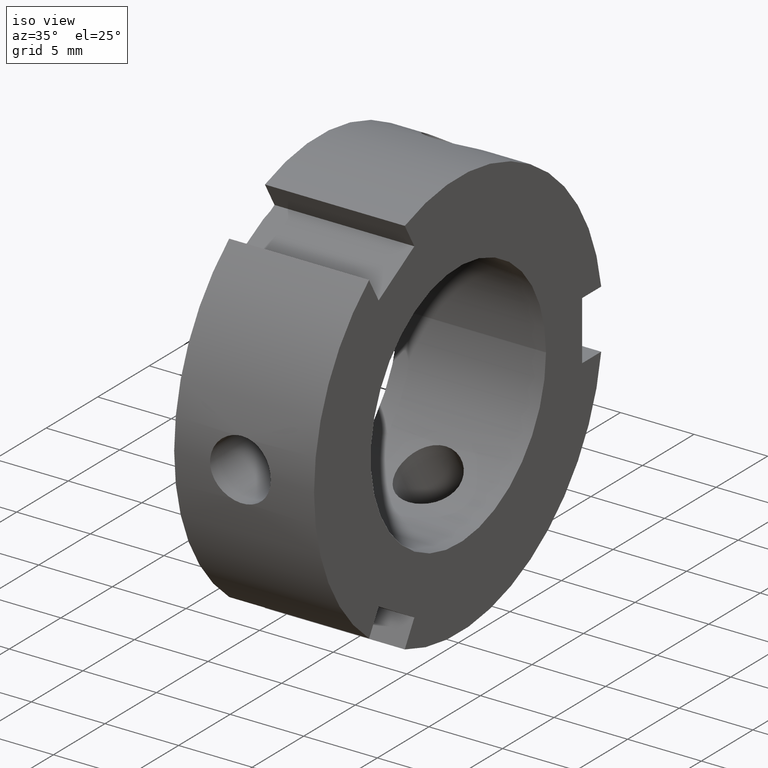
[diagram: clean part render]
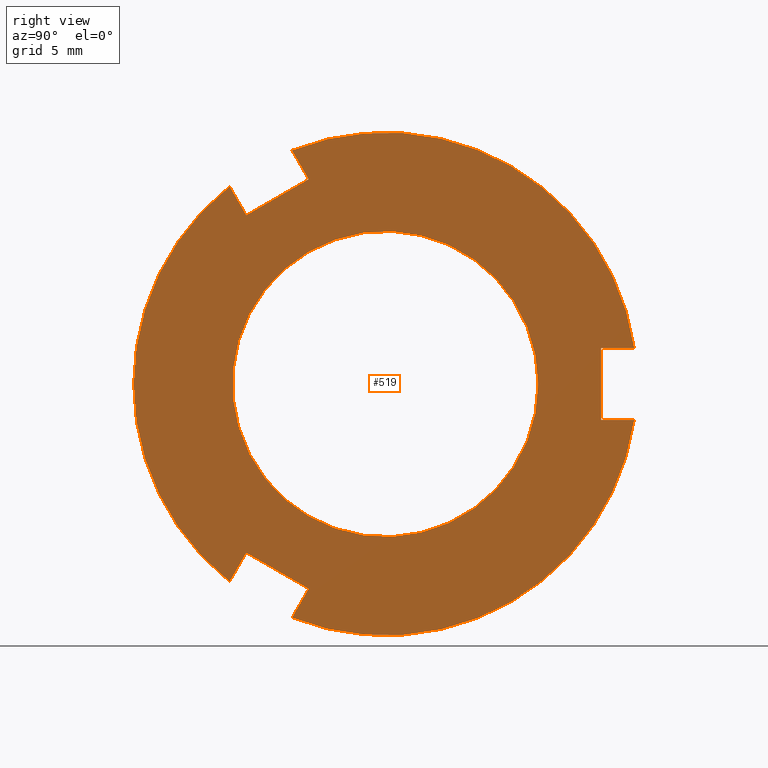
[diagram: tour spotlight — one face highlighted and labeled with its STEP entity id]
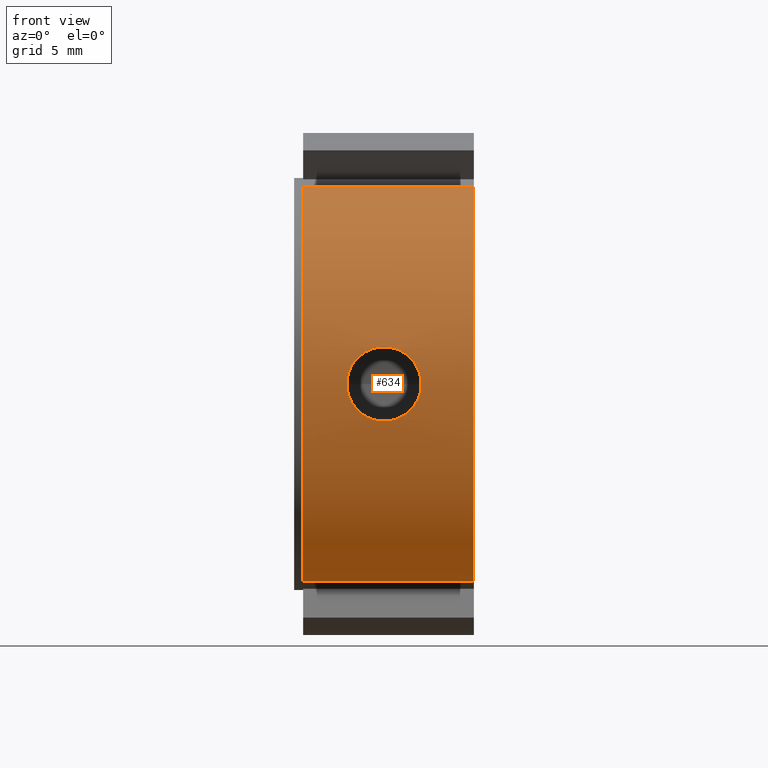
[diagram: tour spotlight — one face highlighted and labeled with its STEP entity id]
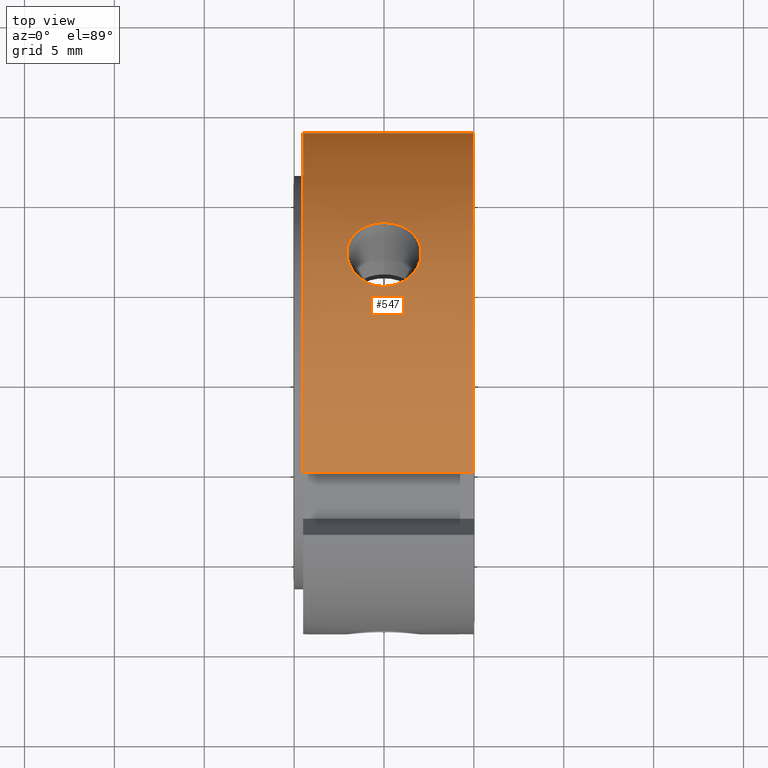
[diagram: tour spotlight — one face highlighted and labeled with its STEP entity id]
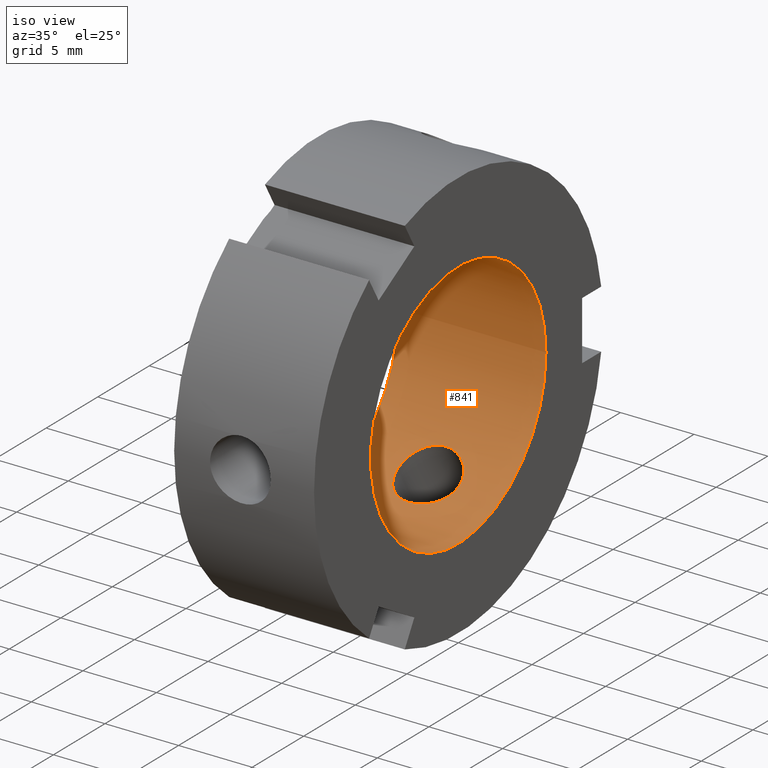
[diagram: tour spotlight — one face highlighted and labeled with its STEP entity id]
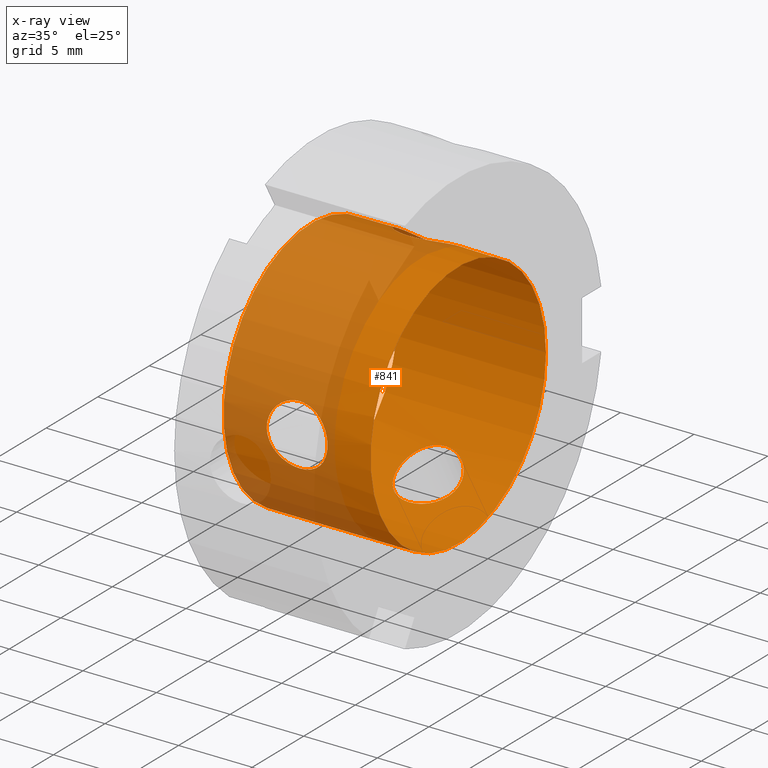
[diagram: x-ray of the same camera — body ghosted, this tour face saturated]
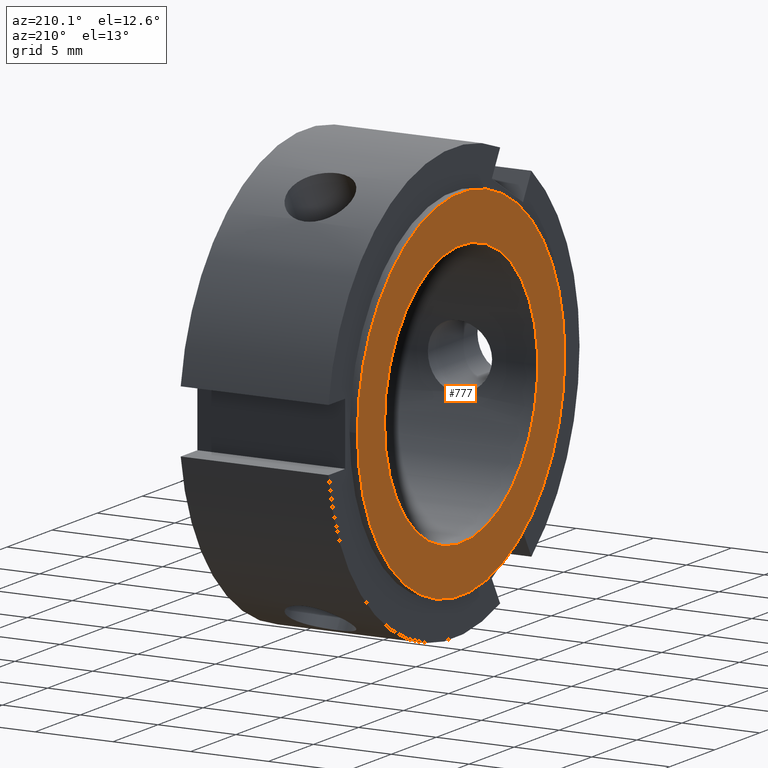
[diagram: tour spotlight — one face highlighted and labeled with its STEP entity id]
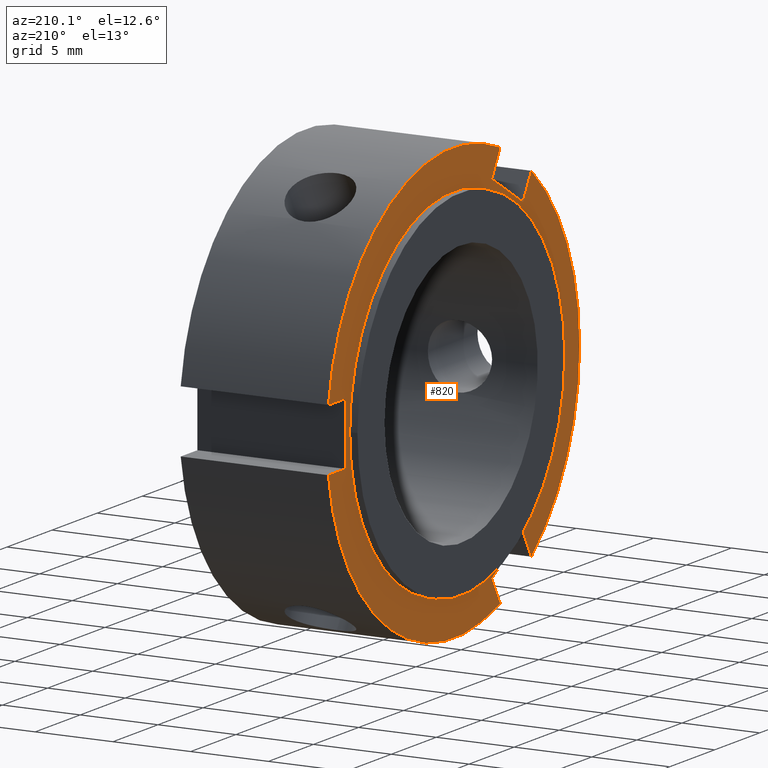
[diagram: tour spotlight — one face highlighted and labeled with its STEP entity id]
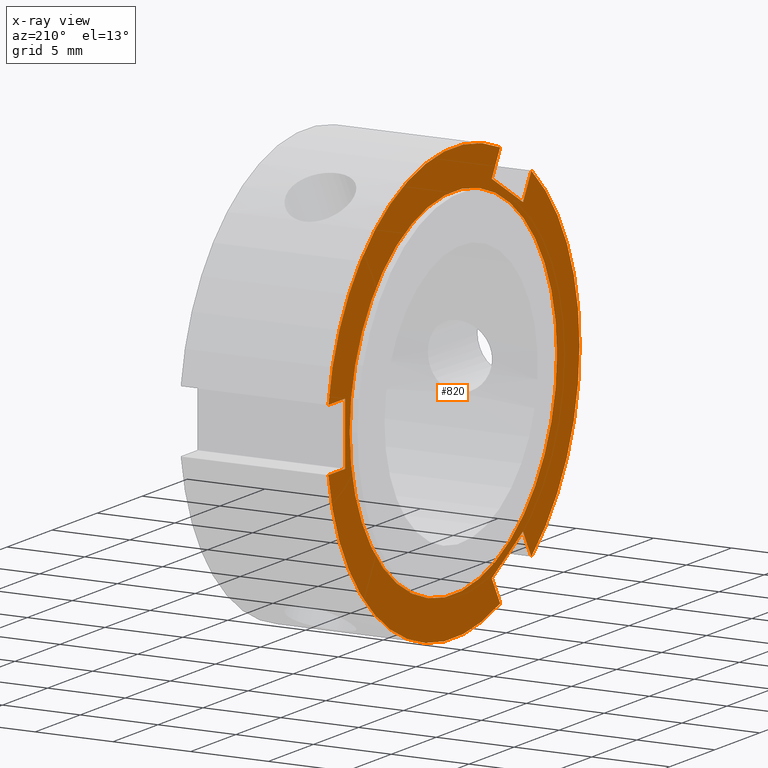
[diagram: x-ray of the same camera — body ghosted, this tour face saturated]
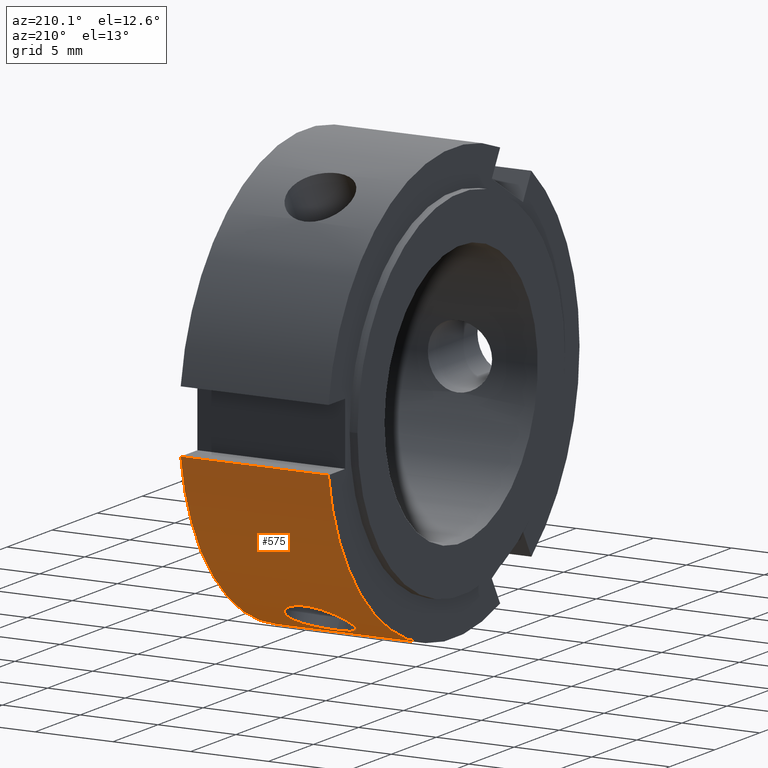
[diagram: tour spotlight — one face highlighted and labeled with its STEP entity id]
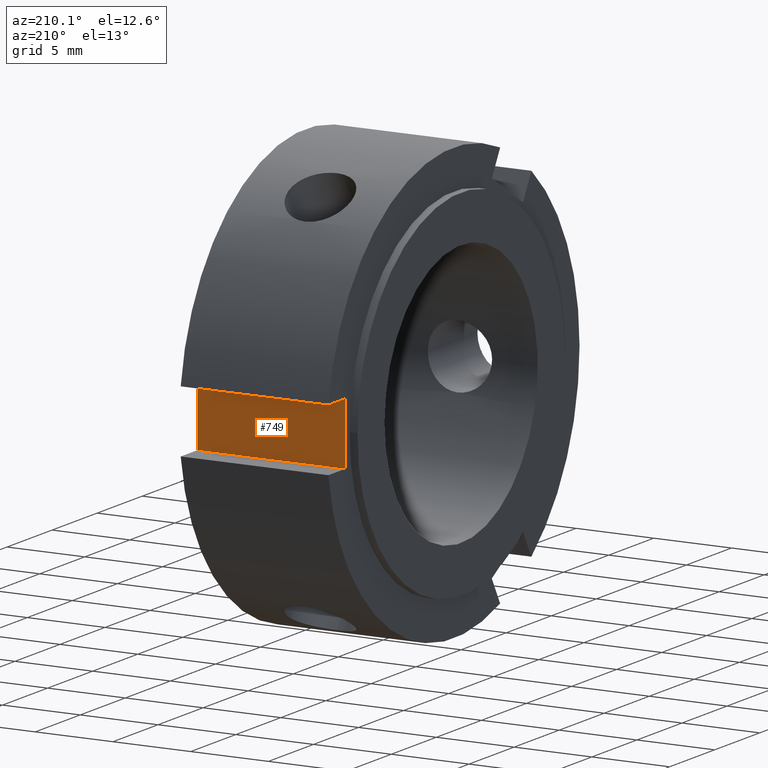
[diagram: tour spotlight — one face highlighted and labeled with its STEP entity id]
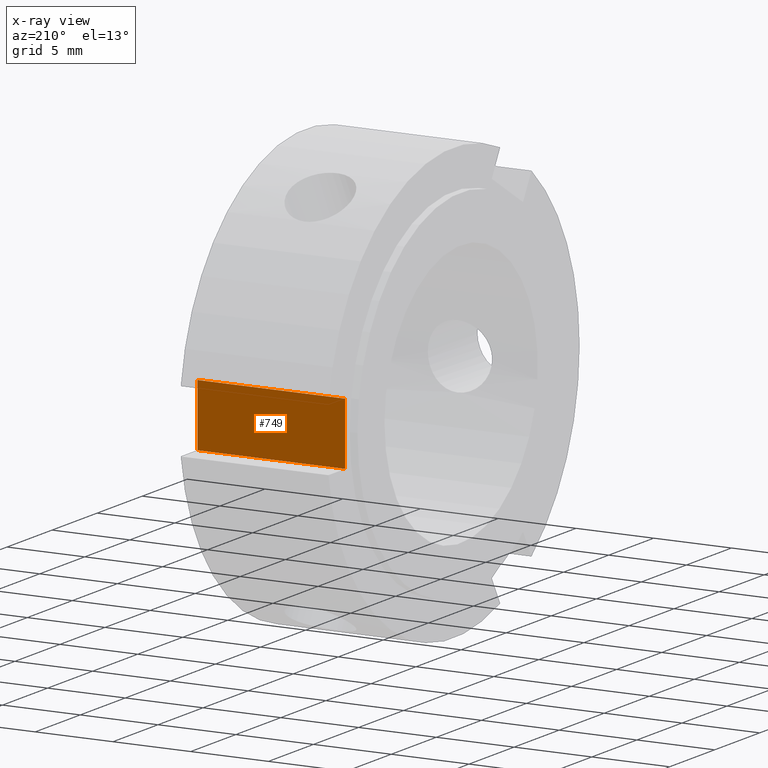
[diagram: x-ray of the same camera — body ghosted, this tour face saturated]
A machine part: a face-by-face anatomy tour. The part has 20 B-rep faces; the first image is the clean iso view, then the 8 largest visible faces are spotlighted one at a time (largest first), each with its STEP entity span.

Face 1 — right view, entity #519. In plain terms, the highlighted planar face has unit normal (1, 0, 0).
Definition (entity closure, byte-faithful):
#83=CARTESIAN_POINT('',(9.999999999999996,-7.732050807568882,-9.392304845413261));
#84=VERTEX_POINT('',#83);
#91=CARTESIAN_POINT('',(9.999999999999996,-8.660254037844391,-10.999999999999995));
#92=VERTEX_POINT('',#91);
#93=CARTESIAN_POINT('',(9.999999999999996,-8.660254037844393,-10.999999999999995));
#94=DIRECTION('',(0.0,0.500000000000000,0.866025403784439));
#95=VECTOR('',#94,1.856406460551016);
#96=LINE('',#93,#95);
#97=EDGE_CURVE('',#92,#84,#96,.T.);
#123=CARTESIAN_POINT('',(9.999999999999996,-5.196152422706638,-12.999999999999996));
#124=VERTEX_POINT('',#123);
#131=CARTESIAN_POINT('',(9.999999999999996,-4.267949192431128,-11.392304845413260));
#132=VERTEX_POINT('',#131);
#133=CARTESIAN_POINT('',(9.999999999999996,-4.267949192431130,-11.392304845413264));
#134=DIRECTION('',(0.0,-0.500000000000001,-0.866025403784438));
#135=VECTOR('',#134,1.856406460551017);
#136=LINE('',#133,#135);
#137=EDGE_CURVE('',#132,#124,#136,.T.);
#160=CARTESIAN_POINT('',(9.999999999999996,-7.732050807568885,-9.392304845413261));
#161=DIRECTION('',(0.0,0.866025403784438,-0.500000000000001));
#162=VECTOR('',#161,4.000000000000003);
#163=LINE('',#160,#162);
#164=EDGE_CURVE('',#84,#132,#163,.T.);
#273=CARTESIAN_POINT('',(9.999999999999996,-4.267949192431120,11.392304845413264));
#274=VERTEX_POINT('',#273);
#281=CARTESIAN_POINT('',(9.999999999999996,-5.196152422706629,12.999999999999998));
#282=VERTEX_POINT('',#281);
#283=CARTESIAN_POINT('',(9.999999999999996,-5.196152422706629,13.0));
#284=DIRECTION('',(0.0,0.500000000000000,-0.866025403784439));
#285=VECTOR('',#284,1.856406460551018);
#286=LINE('',#283,#285);
#287=EDGE_CURVE('',#282,#274,#286,.T.);
#313=CARTESIAN_POINT('',(9.999999999999996,-8.660254037844384,11.0));
#314=VERTEX_POINT('',#313);
#321=CARTESIAN_POINT('',(9.999999999999996,-7.732050807568875,9.392304845413266));
#322=VERTEX_POINT('',#321);
#323=CARTESIAN_POINT('',(9.999999999999996,-7.732050807568876,9.392304845413266));
#324=DIRECTION('',(0.0,-0.500000000000000,0.866025403784439));
#325=VECTOR('',#324,1.856406460551016);
#326=LINE('',#323,#325);
#327=EDGE_CURVE('',#322,#314,#326,.T.);
#350=CARTESIAN_POINT('',(9.999999999999996,-4.267949192431121,11.392304845413264));
#351=DIRECTION('',(0.0,-0.866025403784439,-0.500000000000000));
#352=VECTOR('',#351,4.000000000000001);
#353=LINE('',#350,#352);
#354=EDGE_CURVE('',#274,#322,#353,.T.);
#448=CARTESIAN_POINT('',(9.999999999999996,11.250000000000000,0.0));
#449=DIRECTION('',(1.0,0.0,0.0));
#450=DIRECTION('',(0.0,0.0,-1.0));
#451=AXIS2_PLACEMENT_3D('',#448,#449,#450);
#452=PLANE('',#451);
#453=ORIENTED_EDGE('',*,*,#97,.T.);
#454=ORIENTED_EDGE('',*,*,#164,.T.);
#455=ORIENTED_EDGE('',*,*,#137,.T.);
#456=CARTESIAN_POINT('',(9.999999999999996,13.856406460551016,-2.000000000000000));
#457=VERTEX_POINT('',#456);
#458=CARTESIAN_POINT('',(9.999999999999996,0.0,0.0));
#459=DIRECTION('',(1.0,0.0,0.0));
#460=DIRECTION('',(0.0,1.0,0.0));
#461=AXIS2_PLACEMENT_3D('',#458,#459,#460);
#462=CIRCLE('',#461,14.0);
#463=EDGE_CURVE('',#124,#457,#462,.T.);
#464=ORIENTED_EDGE('',*,*,#463,.T.);
#465=CARTESIAN_POINT('',(9.999999999999996,12.0,-2.000000000000000));
#466=VERTEX_POINT('',#465);
#467=CARTESIAN_POINT('',(9.999999999999996,13.856406460551016,-2.000000000000000));
#468=DIRECTION('',(0.0,-1.0,0.0));
#469=VECTOR('',#468,1.856406460551018);
#470=LINE('',#467,#469);
#471=EDGE_CURVE('',#457,#466,#470,.T.);
#472=ORIENTED_EDGE('',*,*,#471,.T.);
#473=CARTESIAN_POINT('',(9.999999999999996,12.0,2.000000000000000));
#474=VERTEX_POINT('',#473);
#475=CARTESIAN_POINT('',(9.999999999999996,12.000000000000002,-2.0));
#476=DIRECTION('',(0.0,0.0,1.0));
#477=VECTOR('',#476,4.0);
#478=LINE('',#475,#477);
#479=EDGE_CURVE('',#466,#474,#478,.T.);
#480=ORIENTED_EDGE('',*,*,#479,.T.);
#481=CARTESIAN_POINT('',(9.999999999999996,13.856406460551016,2.000000000000000));
#482=VERTEX_POINT('',#481);
#483=CARTESIAN_POINT('',(9.999999999999996,12.0,2.000000000000000));
#484=DIRECTION('',(0.0,1.0,0.0));
#485=VECTOR('',#484,1.856406460551018);
#486=LINE('',#483,#485);
#487=EDGE_CURVE('',#474,#482,#486,.T.);
#488=ORIENTED_EDGE('',*,*,#487,.T.);
#489=CARTESIAN_POINT('',(9.999999999999996,0.0,0.0));
#490=DIRECTION('',(1.0,0.0,0.0));
#491=DIRECTION('',(0.0,1.0,0.0));
#492=AXIS2_PLACEMENT_3D('',#489,#490,#491);
#493=CIRCLE('',#492,14.0);
#494=EDGE_CURVE('',#482,#282,#493,.T.);
#495=ORIENTED_EDGE('',*,*,#494,.T.);
#496=ORIENTED_EDGE('',*,*,#287,.T.);
#497=ORIENTED_EDGE('',*,*,#354,.T.);
#498=ORIENTED_EDGE('',*,*,#327,.T.);
#499=CARTESIAN_POINT('',(9.999999999999996,0.0,0.0));
#500=DIRECTION('',(1.0,0.0,0.0));
#501=DIRECTION('',(0.0,1.0,0.0));
#502=AXIS2_PLACEMENT_3D('',#499,#500,#501);
#503=CIRCLE('',#502,14.0);
#504=EDGE_CURVE('',#314,#92,#503,.T.);
#505=ORIENTED_EDGE('',*,*,#504,.T.);
#506=EDGE_LOOP('',(#453,#454,#455,#464,#472,#480,#488,#495,#496,#497,#498,#505));
#507=FACE_OUTER_BOUND('',#506,.T.);
#508=CARTESIAN_POINT('',(9.999999999999996,8.500000000000000,0.0));
#509=VERTEX_POINT('',#508);
#510=CARTESIAN_POINT('',(9.999999999999996,0.0,0.0));
#511=DIRECTION('',(1.0,0.0,0.0));
#512=DIRECTION('',(0.0,1.0,0.0));
#513=AXIS2_PLACEMENT_3D('',#510,#511,#512);
#514=CIRCLE('',#513,8.500000000000000);
#515=EDGE_CURVE('',#509,#509,#514,.T.);
#516=ORIENTED_EDGE('',*,*,#515,.F.);
#517=EDGE_LOOP('',(#516));
#518=FACE_BOUND('',#517,.T.);
#519=ADVANCED_FACE('',(#507,#518),#452,.T.);

Face 2 — front view, entity #634. In plain terms, the highlighted cylindrical surface (partial cylindrical patch) has radius 14 mm, axis along (1, 0, 0).
Definition (entity closure, byte-faithful):
#75=CARTESIAN_POINT('',(0.499999999999998,-8.660254037844391,-10.999999999999995));
#76=VERTEX_POINT('',#75);
#91=CARTESIAN_POINT('',(9.999999999999996,-8.660254037844391,-10.999999999999995));
#92=VERTEX_POINT('',#91);
#99=CARTESIAN_POINT('',(0.499999999999998,-8.660254037844391,-10.999999999999993));
#100=DIRECTION('',(1.0,0.0,0.0));
#101=VECTOR('',#100,9.499999999999996);
#102=LINE('',#99,#101);
#103=EDGE_CURVE('',#76,#92,#102,.T.);
#303=CARTESIAN_POINT('',(0.499999999999998,-8.660254037844384,11.0));
#304=VERTEX_POINT('',#303);
#313=CARTESIAN_POINT('',(9.999999999999996,-8.660254037844384,11.0));
#314=VERTEX_POINT('',#313);
#315=CARTESIAN_POINT('',(9.999999999999995,-8.660254037844384,11.0));
#316=DIRECTION('',(-1.0,0.0,0.0));
#317=VECTOR('',#316,9.499999999999996);
#318=LINE('',#315,#317);
#319=EDGE_CURVE('',#314,#304,#318,.T.);
#499=CARTESIAN_POINT('',(9.999999999999996,0.0,0.0));
#500=DIRECTION('',(1.0,0.0,0.0));
#501=DIRECTION('',(0.0,1.0,0.0));
#502=AXIS2_PLACEMENT_3D('',#499,#500,#501);
#503=CIRCLE('',#502,14.0);
#504=EDGE_CURVE('',#314,#92,#503,.T.);
#576=CARTESIAN_POINT('',(5.249999999999996,0.0,0.0));
#577=DIRECTION('',(1.0,0.0,0.0));
#578=DIRECTION('',(0.0,1.0,0.0));
#579=AXIS2_PLACEMENT_3D('',#576,#577,#578);
#580=CYLINDRICAL_SURFACE('',#579,14.0);
#581=ORIENTED_EDGE('',*,*,#103,.T.);
#582=ORIENTED_EDGE('',*,*,#504,.F.);
#583=ORIENTED_EDGE('',*,*,#319,.T.);
#584=CARTESIAN_POINT('',(0.499999999999998,0.0,0.0));
#585=DIRECTION('',(1.0,0.0,0.0));
#586=DIRECTION('',(0.0,1.0,0.0));
#587=AXIS2_PLACEMENT_3D('',#584,#585,#586);
#588=CIRCLE('',#587,14.0);
#589=EDGE_CURVE('',#304,#76,#588,.T.);
#590=ORIENTED_EDGE('',*,*,#589,.T.);
#591=EDGE_LOOP('',(#581,#582,#583,#590));
#592=FACE_OUTER_BOUND('',#591,.T.);
#593=CARTESIAN_POINT('',(4.999999999999996,-13.846570369589719,2.067000000000000));
#594=VERTEX_POINT('',#593);
#595=CARTESIAN_POINT('',(4.999999999999996,-13.846570369589719,2.067000000000000));
#596=CARTESIAN_POINT('',(5.259947840968655,-13.846570369589719,2.067000000000000));
#597=CARTESIAN_POINT('',(5.536958622246917,-13.854646803728379,2.014971436293672));
#598=CARTESIAN_POINT('',(6.046109738612246,-13.883704795369095,1.803909363737498));
#599=CARTESIAN_POINT('',(6.278283119933112,-13.904254301812147,1.644896313492072));
#600=CARTESIAN_POINT('',(6.644893315557710,-13.942738434801264,1.278286117867474));
#601=CARTESIAN_POINT('',(6.803908717315345,-13.963189768979600,1.046111442062615));
#602=CARTESIAN_POINT('',(7.014972502059488,-13.992022585207476,0.536955907201504));
#603=CARTESIAN_POINT('',(7.066999999999996,-14.0,0.259943589585582));
#604=CARTESIAN_POINT('',(7.066999999999997,-14.0,-0.259943589585581));
#605=CARTESIAN_POINT('',(7.014972502059488,-13.992022585207476,-0.536955907201503));
#606=CARTESIAN_POINT('',(6.803908717315346,-13.963189768979600,-1.046111442062614));
#607=CARTESIAN_POINT('',(6.644893315557710,-13.942738434801264,-1.278286117867474));
#608=CARTESIAN_POINT('',(6.278283119933112,-13.904254301812147,-1.644896313492072));
#609=CARTESIAN_POINT('',(6.046109738612248,-13.883704795369097,-1.803909363737497));
#610=CARTESIAN_POINT('',(5.536958622246919,-13.854646803728381,-2.014971436293671));
#611=CARTESIAN_POINT('',(5.259947840968656,-13.846570369589720,-2.067000000000001));
#612=CARTESIAN_POINT('',(4.740052159031335,-13.846570369589719,-2.067000000000000));
#613=CARTESIAN_POINT('',(4.463041377753073,-13.854646803728379,-2.014971436293671));
#614=CARTESIAN_POINT('',(3.953890261387743,-13.883704795369095,-1.803909363737498));
#615=CARTESIAN_POINT('',(3.721716880066880,-13.904254301812147,-1.644896313492072));
#616=CARTESIAN_POINT('',(3.355106684442282,-13.942738434801264,-1.278286117867474));
#617=CARTESIAN_POINT('',(3.196091282684646,-13.963189768979600,-1.046111442062615));
#618=CARTESIAN_POINT('',(2.985027497940504,-13.992022585207476,-0.536955907201504));
#619=CARTESIAN_POINT('',(2.932999999999995,-14.0,-0.259943589585582));
#620=CARTESIAN_POINT('',(2.932999999999995,-14.0,0.259943589585582));
#621=CARTESIAN_POINT('',(2.985027497940504,-13.992022585207476,0.536955907201504));
#622=CARTESIAN_POINT('',(3.196091282684646,-13.963189768979600,1.046111442062615));
#623=CARTESIAN_POINT('',(3.355106684442281,-13.942738434801264,1.278286117867473));
#624=CARTESIAN_POINT('',(3.721716880066879,-13.904254301812147,1.644896313492072));
#625=CARTESIAN_POINT('',(3.953890261387742,-13.883704795369095,1.803909363737497));
#626=CARTESIAN_POINT('',(4.463041377753073,-13.854646803728379,2.014971436293671));
#627=CARTESIAN_POINT('',(4.740052159031335,-13.846570369589719,2.067000000000000));
#628=CARTESIAN_POINT('',(4.999999999999996,-13.846570369589719,2.067000000000000));
#629=B_SPLINE_CURVE_WITH_KNOTS('',3,(#595,#596,#597,#598,#599,#600,#601,#602,#603,#604,#605,#606,#607,#608,#609,#610,#611,#612,#613,#614,#615,#616,#617,#618,#619,#620,#621,#622,#623,#624,#625,#626,#627,#628),.UNSPECIFIED.,.T.,.U.,(4,2,2,2,2,2,2,2,2,2,2,2,2,2,2,2,4),(0.0,0.077984352290598,0.155968704581196,0.233951781456871,0.311934858332545,0.389917935208220,0.467901012083894,0.545885364374492,0.623869716665090,0.701854068955688,0.779838421246287,0.857821498121961,0.935804574997636,1.013787651873310,1.091770728748985,1.169755081039583,1.247739433330181),.UNSPECIFIED.);
#630=EDGE_CURVE('',#594,#594,#629,.T.);
#631=ORIENTED_EDGE('',*,*,#630,.T.);
#632=EDGE_LOOP('',(#631));
#633=FACE_BOUND('',#632,.T.);
#634=ADVANCED_FACE('',(#592,#633),#580,.T.);

Face 3 — top view, entity #547. In plain terms, the highlighted cylindrical surface (partial cylindrical patch) has radius 14 mm, axis along (1, 0, 0).
Definition (entity closure, byte-faithful):
#175=CARTESIAN_POINT('',(4.999999999999996,8.713359694417303,10.957981695353578));
#176=VERTEX_POINT('',#175);
#177=CARTESIAN_POINT('',(4.999999999999996,8.713359694417301,10.957981695353574));
#178=CARTESIAN_POINT('',(5.259947840968655,8.713359694417301,10.957981695353574));
#179=CARTESIAN_POINT('',(5.536958622246916,8.672339853594533,10.990990374342815));
#180=CARTESIAN_POINT('',(6.046109738612246,8.504083732805849,11.121686369564713));
#181=CARTESIAN_POINT('',(6.278283119933112,8.376649144981588,11.218989289302341));
#182=CARTESIAN_POINT('',(6.644893315557710,8.078397468778862,11.435622623925834));
#183=CARTESIAN_POINT('',(6.803908717315345,7.887553968505605,11.569421336767988));
#184=CARTESIAN_POINT('',(7.014972502059487,7.461028748952369,11.848969055514534));
#185=CARTESIAN_POINT('',(7.066999999999996,7.225117752132037,11.994383858189344));
#186=CARTESIAN_POINT('',(7.066999999999997,6.774882247867977,12.254327447774926));
#187=CARTESIAN_POINT('',(7.014972502059489,6.530993836255127,12.385924962716038));
#188=CARTESIAN_POINT('',(6.803908717315348,6.075635800474012,12.615532778830605));
#189=CARTESIAN_POINT('',(6.644893315557710,5.864340966022416,12.713908741793309));
#190=CARTESIAN_POINT('',(6.278283119933112,5.527605156830575,12.863885602794413));
#191=CARTESIAN_POINT('',(6.046109738612247,5.379621062563258,12.925595733302213));
#192=CARTESIAN_POINT('',(5.536958622246918,5.182306950133862,13.005961810636485));
#193=CARTESIAN_POINT('',(5.259947840968656,5.133210675172430,13.024981695353578));
#194=CARTESIAN_POINT('',(4.740052159031335,5.133210675172430,13.024981695353578));
#195=CARTESIAN_POINT('',(4.463041377753073,5.182306950133862,13.005961810636485));
#196=CARTESIAN_POINT('',(3.953890261387743,5.379621062563258,12.925595733302213));
#197=CARTESIAN_POINT('',(3.721716880066880,5.527605156830575,12.863885602794413));
#198=CARTESIAN_POINT('',(3.355106684442282,5.864340966022416,12.713908741793309));
#199=CARTESIAN_POINT('',(3.196091282684646,6.075635800474010,12.615532778830605));
#200=CARTESIAN_POINT('',(2.985027497940504,6.530993836255124,12.385924962716038));
#201=CARTESIAN_POINT('',(2.932999999999995,6.774882247867977,12.254327447774926));
#202=CARTESIAN_POINT('',(2.932999999999995,7.225117752132036,11.994383858189344));
#203=CARTESIAN_POINT('',(2.985027497940504,7.461028748952368,11.848969055514535));
#204=CARTESIAN_POINT('',(3.196091282684645,7.887553968505604,11.569421336767988));
#205=CARTESIAN_POINT('',(3.355106684442281,8.078397468778862,11.435622623925834));
#206=CARTESIAN_POINT('',(3.721716880066879,8.376649144981588,11.218989289302341));
#207=CARTESIAN_POINT('',(3.953890261387744,8.504083732805849,11.121686369564713));
#208=CARTESIAN_POINT('',(4.463041377753074,8.672339853594533,10.990990374342815));
#209=CARTESIAN_POINT('',(4.740052159031335,8.713359694417301,10.957981695353574));
#210=CARTESIAN_POINT('',(4.999999999999996,8.713359694417301,10.957981695353574));
#211=B_SPLINE_CURVE_WITH_KNOTS('',3,(#177,#178,#179,#180,#181,#182,#183,#184,#185,#186,#187,#188,#189,#190,#191,#192,#193,#194,#195,#196,#197,#198,#199,#200,#201,#202,#203,#204,#205,#206,#207,#208,#209,#210),.UNSPECIFIED.,.T.,.U.,(4,2,2,2,2,2,2,2,2,2,2,2,2,2,2,2,4),(0.0,0.077984352290598,0.155968704581196,0.233951781456871,0.311934858332545,0.389917935208220,0.467901012083894,0.545885364374493,0.623869716665091,0.701854068955689,0.779838421246287,0.857821498121961,0.935804574997636,1.013787651873310,1.091770728748985,1.169755081039583,1.247739433330181),.UNSPECIFIED.);
#212=EDGE_CURVE('',#176,#176,#211,.T.);
#265=CARTESIAN_POINT('',(0.499999999999998,-5.196152422706629,12.999999999999998));
#266=VERTEX_POINT('',#265);
#281=CARTESIAN_POINT('',(9.999999999999996,-5.196152422706629,12.999999999999998));
#282=VERTEX_POINT('',#281);
#289=CARTESIAN_POINT('',(0.499999999999998,-5.196152422706629,12.999999999999998));
#290=DIRECTION('',(1.0,0.0,0.0));
#291=VECTOR('',#290,9.499999999999996);
#292=LINE('',#289,#291);
#293=EDGE_CURVE('',#266,#282,#292,.T.);
#481=CARTESIAN_POINT('',(9.999999999999996,13.856406460551016,2.000000000000000));
#482=VERTEX_POINT('',#481);
#489=CARTESIAN_POINT('',(9.999999999999996,0.0,0.0));
#490=DIRECTION('',(1.0,0.0,0.0));
#491=DIRECTION('',(0.0,1.0,0.0));
#492=AXIS2_PLACEMENT_3D('',#489,#490,#491);
#493=CIRCLE('',#492,14.0);
#494=EDGE_CURVE('',#482,#282,#493,.T.);
#520=CARTESIAN_POINT('',(5.249999999999996,0.0,0.0));
#521=DIRECTION('',(1.0,0.0,0.0));
#522=DIRECTION('',(0.0,1.0,0.0));
#523=AXIS2_PLACEMENT_3D('',#520,#521,#522);
#524=CYLINDRICAL_SURFACE('',#523,14.0);
#525=ORIENTED_EDGE('',*,*,#293,.T.);
#526=ORIENTED_EDGE('',*,*,#494,.F.);
#527=CARTESIAN_POINT('',(0.499999999999998,13.856406460551016,2.000000000000000));
#528=VERTEX_POINT('',#527);
#529=CARTESIAN_POINT('',(9.999999999999995,13.856406460551016,2.000000000000000));
#530=DIRECTION('',(-1.0,0.0,0.0));
#531=VECTOR('',#530,9.499999999999996);
#532=LINE('',#529,#531);
#533=EDGE_CURVE('',#482,#528,#532,.T.);
#534=ORIENTED_EDGE('',*,*,#533,.T.);
#535=CARTESIAN_POINT('',(0.499999999999998,0.0,0.0));
#536=DIRECTION('',(1.0,0.0,0.0));
#537=DIRECTION('',(0.0,1.0,0.0));
#538=AXIS2_PLACEMENT_3D('',#535,#536,#537);
#539=CIRCLE('',#538,14.0);
#540=EDGE_CURVE('',#528,#266,#539,.T.);
#541=ORIENTED_EDGE('',*,*,#540,.T.);
#542=EDGE_LOOP('',(#525,#526,#534,#541));
#543=FACE_OUTER_BOUND('',#542,.T.);
#544=ORIENTED_EDGE('',*,*,#212,.T.);
#545=EDGE_LOOP('',(#544));
#546=FACE_BOUND('',#545,.T.);
#547=ADVANCED_FACE('',(#543,#546),#524,.T.);

Face 4 — iso view, entity #841. An x-ray twin of the same camera follows (body ghosted, this face saturated) — the face is partly hidden behind the body. In plain terms, the highlighted cylindrical surface (bore or boss wall) has radius 8.5 mm, axis along (1, 0, 0).
Definition (entity closure, byte-faithful):
#216=CARTESIAN_POINT('',(4.999999999999996,5.912498280900690,6.106747422183629));
#217=VERTEX_POINT('',#216);
#218=CARTESIAN_POINT('',(4.999999999999995,5.912498280900691,6.106747422183628));
#219=CARTESIAN_POINT('',(4.739317430306124,5.912498280900691,6.106747422183628));
#220=CARTESIAN_POINT('',(4.462009880145303,5.874019638599411,6.144724887857949));
#221=CARTESIAN_POINT('',(3.953075137963605,5.715408465520920,6.292523852093659));
#222=CARTESIAN_POINT('',(3.721352480291035,5.594937835462637,6.401652768778260));
#223=CARTESIAN_POINT('',(3.355490909488899,5.310023284352898,6.639889432044783));
#224=CARTESIAN_POINT('',(3.196578016542416,5.126249971750401,6.785049099697611));
#225=CARTESIAN_POINT('',(2.985304242775974,4.709299685922598,7.080806911795103));
#226=CARTESIAN_POINT('',(2.932999999999995,4.475729562963221,7.230890908226854));
#227=CARTESIAN_POINT('',(2.932999999999995,4.024270437036789,7.491540956108596));
#228=CARTESIAN_POINT('',(2.985304242775973,3.777508821945708,7.618776617940595));
#229=CARTESIAN_POINT('',(3.196578016542416,3.312899900387675,7.831987251533910));
#230=CARTESIAN_POINT('',(3.355490909488899,3.095301284294173,7.918559774958876));
#231=CARTESIAN_POINT('',(3.721352480291034,2.746525006237656,8.046184682494488));
#232=CARTESIAN_POINT('',(3.953075137963604,2.591781277072176,8.095950850192578));
#233=CARTESIAN_POINT('',(4.462009880145302,2.384478032851777,8.159412673284749));
#234=CARTESIAN_POINT('',(4.739317430306126,2.332349261655822,8.173747422183629));
#235=CARTESIAN_POINT('',(5.260682569693866,2.332349261655822,8.173747422183629));
#236=CARTESIAN_POINT('',(5.537990119854688,2.384478032851777,8.159412673284749));
#237=CARTESIAN_POINT('',(6.046924862036386,2.591781277072176,8.095950850192578));
#238=CARTESIAN_POINT('',(6.278647519708958,2.746525006237656,8.046184682494488));
#239=CARTESIAN_POINT('',(6.644509090511093,3.095301284294173,7.918559774958876));
#240=CARTESIAN_POINT('',(6.803421983457576,3.312899900387675,7.831987251533908));
#241=CARTESIAN_POINT('',(7.014695757224018,3.777508821945708,7.618776617940593));
#242=CARTESIAN_POINT('',(7.066999999999996,4.024270437036788,7.491540956108596));
#243=CARTESIAN_POINT('',(7.066999999999996,4.475729562963221,7.230890908226854));
#244=CARTESIAN_POINT('',(7.014695757224018,4.709299685922598,7.080806911795103));
#245=CARTESIAN_POINT('',(6.803421983457576,5.126249971750401,6.785049099697611));
#246=CARTESIAN_POINT('',(6.644509090511093,5.310023284352898,6.639889432044783));
#247=CARTESIAN_POINT('',(6.278647519708958,5.594937835462637,6.401652768778260));
#248=CARTESIAN_POINT('',(6.046924862036388,5.715408465520920,6.292523852093659));
#249=CARTESIAN_POINT('',(5.537990119854691,5.874019638599412,6.144724887857949));
#250=CARTESIAN_POINT('',(5.260682569693867,5.912498280900691,6.106747422183628));
#251=CARTESIAN_POINT('',(4.999999999999996,5.912498280900691,6.106747422183628));
#252=B_SPLINE_CURVE_WITH_KNOTS('',3,(#218,#219,#220,#221,#222,#223,#224,#225,#226,#227,#228,#229,#230,#231,#232,#233,#234,#235,#236,#237,#238,#239,#240,#241,#242,#243,#244,#245,#246,#247,#248,#249,#250,#251),.UNSPECIFIED.,.T.,.U.,(4,2,2,2,2,2,2,2,2,2,2,2,2,2,2,2,4),(0.0,0.078204770908161,0.156409541816322,0.234604556180844,0.312799570545366,0.390994584909888,0.469189599274409,0.547394370182571,0.625599141090732,0.703803911998893,0.782008682907054,0.860203697271576,0.938398711636097,1.016593726000619,1.094788740365141,1.172993511273302,1.251198282181464),.UNSPECIFIED.);
#253=EDGE_CURVE('',#217,#217,#252,.T.);
#406=CARTESIAN_POINT('',(4.999999999999996,2.332349261655815,-8.173747422183633));
#407=VERTEX_POINT('',#406);
#408=CARTESIAN_POINT('',(4.999999999999995,2.332349261655812,-8.173747422183634));
#409=CARTESIAN_POINT('',(4.739317430306125,2.332349261655812,-8.173747422183634));
#410=CARTESIAN_POINT('',(4.462009880145300,2.384478032851765,-8.159412673284752));
#411=CARTESIAN_POINT('',(3.953075137963602,2.591781277072164,-8.095950850192581));
#412=CARTESIAN_POINT('',(3.721352480291034,2.746525006237643,-8.046184682494491));
#413=CARTESIAN_POINT('',(3.355490909488898,3.095301284294160,-7.918559774958878));
#414=CARTESIAN_POINT('',(3.196578016542416,3.312899900387664,-7.831987251533913));
#415=CARTESIAN_POINT('',(2.985304242775974,3.777508821945698,-7.618776617940599));
#416=CARTESIAN_POINT('',(2.932999999999995,4.024270437036776,-7.491540956108597));
#417=CARTESIAN_POINT('',(2.932999999999995,4.475729562963209,-7.230890908226860));
#418=CARTESIAN_POINT('',(2.985304242775972,4.709299685922588,-7.080806911795110));
#419=CARTESIAN_POINT('',(3.196578016542415,5.126249971750391,-6.785049099697618));
#420=CARTESIAN_POINT('',(3.355490909488899,5.310023284352884,-6.639889432044788));
#421=CARTESIAN_POINT('',(3.721352480291034,5.594937835462623,-6.401652768778265));
#422=CARTESIAN_POINT('',(3.953075137963602,5.715408465520909,-6.292523852093668));
#423=CARTESIAN_POINT('',(4.462009880145301,5.874019638599402,-6.144724887857958));
#424=CARTESIAN_POINT('',(4.739317430306126,5.912498280900680,-6.106747422183634));
#425=CARTESIAN_POINT('',(5.260682569693866,5.912498280900680,-6.106747422183634));
#426=CARTESIAN_POINT('',(5.537990119854689,5.874019638599402,-6.144724887857959));
#427=CARTESIAN_POINT('',(6.046924862036386,5.715408465520912,-6.292523852093667));
#428=CARTESIAN_POINT('',(6.278647519708956,5.594937835462623,-6.401652768778265));
#429=CARTESIAN_POINT('',(6.644509090511091,5.310023284352884,-6.639889432044788));
#430=CARTESIAN_POINT('',(6.803421983457576,5.126249971750391,-6.785049099697618));
#431=CARTESIAN_POINT('',(7.014695757224018,4.709299685922588,-7.080806911795110));
#432=CARTESIAN_POINT('',(7.066999999999996,4.475729562963209,-7.230890908226860));
#433=CARTESIAN_POINT('',(7.066999999999996,4.024270437036776,-7.491540956108597));
#434=CARTESIAN_POINT('',(7.014695757224017,3.777508821945698,-7.618776617940599));
#435=CARTESIAN_POINT('',(6.803421983457575,3.312899900387664,-7.831987251533913));
#436=CARTESIAN_POINT('',(6.644509090511093,3.095301284294160,-7.918559774958878));
#437=CARTESIAN_POINT('',(6.278647519708958,2.746525006237643,-8.046184682494491));
#438=CARTESIAN_POINT('',(6.046924862036388,2.591781277072164,-8.095950850192583));
#439=CARTESIAN_POINT('',(5.537990119854691,2.384478032851765,-8.159412673284752));
#440=CARTESIAN_POINT('',(5.260682569693866,2.332349261655812,-8.173747422183634));
#441=CARTESIAN_POINT('',(4.999999999999995,2.332349261655812,-8.173747422183634));
#442=B_SPLINE_CURVE_WITH_KNOTS('',3,(#408,#409,#410,#411,#412,#413,#414,#415,#416,#417,#418,#419,#420,#421,#422,#423,#424,#425,#426,#427,#428,#429,#430,#431,#432,#433,#434,#435,#436,#437,#438,#439,#440,#441),.UNSPECIFIED.,.T.,.U.,(4,2,2,2,2,2,2,2,2,2,2,2,2,2,2,2,4),(0.0,0.078204770908161,0.156409541816322,0.234604556180844,0.312799570545366,0.390994584909887,0.469189599274409,0.547394370182570,0.625599141090731,0.703803911998893,0.782008682907054,0.860203697271576,0.938398711636097,1.016593726000619,1.094788740365141,1.172993511273302,1.251198282181463),.UNSPECIFIED.);
#443=EDGE_CURVE('',#407,#407,#442,.T.);
#508=CARTESIAN_POINT('',(9.999999999999996,8.500000000000000,0.0));
#509=VERTEX_POINT('',#508);
#510=CARTESIAN_POINT('',(9.999999999999996,0.0,0.0));
#511=DIRECTION('',(1.0,0.0,0.0));
#512=DIRECTION('',(0.0,1.0,0.0));
#513=AXIS2_PLACEMENT_3D('',#510,#511,#512);
#514=CIRCLE('',#513,8.500000000000000);
#515=EDGE_CURVE('',#509,#509,#514,.T.);
#643=CARTESIAN_POINT('',(4.999999999999996,-8.244847542556503,2.067000000000000));
#644=VERTEX_POINT('',#643);
#645=CARTESIAN_POINT('',(4.999999999999995,-8.244847542556503,2.067000000000000));
#646=CARTESIAN_POINT('',(4.739317430306124,-8.244847542556503,2.067000000000000));
#647=CARTESIAN_POINT('',(4.462009880145301,-8.258497671451176,2.014687785426797));
#648=CARTESIAN_POINT('',(3.953075137963602,-8.307189742593083,1.803426998098916));
#649=CARTESIAN_POINT('',(3.721352480291034,-8.341462841700283,1.644531913716226));
#650=CARTESIAN_POINT('',(3.355490909488899,-8.405324568647060,1.278670342914091));
#651=CARTESIAN_POINT('',(3.196578016542415,-8.439149872138067,1.046938151836297));
#652=CARTESIAN_POINT('',(2.985304242775972,-8.486808507868298,0.537969706145490));
#653=CARTESIAN_POINT('',(2.932999999999995,-8.500000000000000,0.260650047881739));
#654=CARTESIAN_POINT('',(2.932999999999995,-8.500000000000000,-0.260650047881739));
#655=CARTESIAN_POINT('',(2.985304242775972,-8.486808507868298,-0.537969706145490));
#656=CARTESIAN_POINT('',(3.196578016542415,-8.439149872138067,-1.046938151836297));
#657=CARTESIAN_POINT('',(3.355490909488899,-8.405324568647060,-1.278670342914091));
#658=CARTESIAN_POINT('',(3.721352480291034,-8.341462841700283,-1.644531913716226));
#659=CARTESIAN_POINT('',(3.953075137963602,-8.307189742593083,-1.803426998098916));
#660=CARTESIAN_POINT('',(4.462009880145301,-8.258497671451176,-2.014687785426797));
#661=CARTESIAN_POINT('',(4.739317430306125,-8.244847542556503,-2.067000000000000));
#662=CARTESIAN_POINT('',(5.260682569693866,-8.244847542556503,-2.067000000000000));
#663=CARTESIAN_POINT('',(5.537990119854689,-8.258497671451178,-2.014687785426797));
#664=CARTESIAN_POINT('',(6.046924862036387,-8.307189742593083,-1.803426998098917));
#665=CARTESIAN_POINT('',(6.278647519708956,-8.341462841700281,-1.644531913716226));
#666=CARTESIAN_POINT('',(6.644509090511093,-8.405324568647059,-1.278670342914091));
#667=CARTESIAN_POINT('',(6.803421983457576,-8.439149872138067,-1.046938151836297));
#668=CARTESIAN_POINT('',(7.014695757224018,-8.486808507868298,-0.537969706145490));
#669=CARTESIAN_POINT('',(7.066999999999996,-8.500000000000000,-0.260650047881739));
#670=CARTESIAN_POINT('',(7.066999999999996,-8.500000000000000,0.260650047881739));
#671=CARTESIAN_POINT('',(7.014695757224017,-8.486808507868297,0.537969706145492));
#672=CARTESIAN_POINT('',(6.803421983457575,-8.439149872138065,1.046938151836298));
#673=CARTESIAN_POINT('',(6.644509090511093,-8.405324568647060,1.278670342914091));
#674=CARTESIAN_POINT('',(6.278647519708958,-8.341462841700283,1.644531913716227));
#675=CARTESIAN_POINT('',(6.046924862036387,-8.307189742593083,1.803426998098918));
#676=CARTESIAN_POINT('',(5.537990119854689,-8.258497671451178,2.014687785426797));
#677=CARTESIAN_POINT('',(5.260682569693866,-8.244847542556503,2.067000000000000));
#678=CARTESIAN_POINT('',(4.999999999999996,-8.244847542556503,2.067000000000000));
#679=B_SPLINE_CURVE_WITH_KNOTS('',3,(#645,#646,#647,#648,#649,#650,#651,#652,#653,#654,#655,#656,#657,#658,#659,#660,#661,#662,#663,#664,#665,#666,#667,#668,#669,#670,#671,#672,#673,#674,#675,#676,#677,#678),.UNSPECIFIED.,.T.,.U.,(4,2,2,2,2,2,2,2,2,2,2,2,2,2,2,2,4),(0.0,0.078204770908161,0.156409541816322,0.234604556180844,0.312799570545366,0.390994584909887,0.469189599274409,0.547394370182570,0.625599141090732,0.703803911998893,0.782008682907054,0.860203697271576,0.938398711636097,1.016593726000619,1.094788740365141,1.172993511273302,1.251198282181463),.UNSPECIFIED.);
#680=EDGE_CURVE('',#644,#644,#679,.T.);
#766=CARTESIAN_POINT('',(-1.708666E-015,8.500000000000000,0.0));
#767=VERTEX_POINT('',#766);
#768=CARTESIAN_POINT('',(-1.708703E-015,0.0,0.0));
#769=DIRECTION('',(1.0,0.0,0.0));
#770=DIRECTION('',(0.0,1.0,0.0));
#771=AXIS2_PLACEMENT_3D('',#768,#769,#770);
#772=CIRCLE('',#771,8.500000000000000);
#773=EDGE_CURVE('',#767,#767,#772,.T.);
#821=CARTESIAN_POINT('',(4.999999999999997,0.0,0.0));
#822=DIRECTION('',(1.0,0.0,0.0));
#823=DIRECTION('',(0.0,1.0,0.0));
#824=AXIS2_PLACEMENT_3D('',#821,#822,#823);
#825=CYLINDRICAL_SURFACE('',#824,8.500000000000000);
#826=ORIENTED_EDGE('',*,*,#773,.F.);
#827=EDGE_LOOP('',(#826));
#828=FACE_OUTER_BOUND('',#827,.T.);
#829=ORIENTED_EDGE('',*,*,#253,.T.);
#830=EDGE_LOOP('',(#829));
#831=FACE_BOUND('',#830,.T.);
#832=ORIENTED_EDGE('',*,*,#443,.T.);
#833=EDGE_LOOP('',(#832));
#834=FACE_BOUND('',#833,.T.);
#835=ORIENTED_EDGE('',*,*,#680,.T.);
#836=EDGE_LOOP('',(#835));
#837=FACE_BOUND('',#836,.T.);
#838=ORIENTED_EDGE('',*,*,#515,.T.);
#839=EDGE_LOOP('',(#838));
#840=FACE_BOUND('',#839,.T.);
#841=ADVANCED_FACE('',(#828,#831,#834,#837,#840),#825,.F.);

Face 5 — auxiliary view, entity #777. In plain terms, the highlighted planar face has unit normal (-1, 0, 0).
Definition (entity closure, byte-faithful):
#750=CARTESIAN_POINT('',(-1.964556E-015,10.0,0.0));
#751=DIRECTION('',(-1.0,0.0,0.0));
#752=DIRECTION('',(0.0,0.0,1.0));
#753=AXIS2_PLACEMENT_3D('',#750,#751,#752);
#754=PLANE('',#753);
#755=CARTESIAN_POINT('',(-2.220446E-015,11.500000000000000,0.0));
#756=VERTEX_POINT('',#755);
#757=CARTESIAN_POINT('',(-2.220446E-015,0.0,0.0));
#758=DIRECTION('',(1.0,0.0,0.0));
#759=DIRECTION('',(0.0,1.0,0.0));
#760=AXIS2_PLACEMENT_3D('',#757,#758,#759);
#761=CIRCLE('',#760,11.500000000000000);
#762=EDGE_CURVE('',#756,#756,#761,.T.);
#763=ORIENTED_EDGE('',*,*,#762,.F.);
#764=EDGE_LOOP('',(#763));
#765=FACE_OUTER_BOUND('',#764,.T.);
#766=CARTESIAN_POINT('',(-1.708666E-015,8.500000000000000,0.0));
#767=VERTEX_POINT('',#766);
#768=CARTESIAN_POINT('',(-1.708703E-015,0.0,0.0));
#769=DIRECTION('',(1.0,0.0,0.0));
#770=DIRECTION('',(0.0,1.0,0.0));
#771=AXIS2_PLACEMENT_3D('',#768,#769,#770);
#772=CIRCLE('',#771,8.500000000000000);
#773=EDGE_CURVE('',#767,#767,#772,.T.);
#774=ORIENTED_EDGE('',*,*,#773,.T.);
#775=EDGE_LOOP('',(#774));
#776=FACE_BOUND('',#775,.T.);
#777=ADVANCED_FACE('',(#765,#776),#754,.T.);

Face 6 — auxiliary view, entity #820. An x-ray twin of the same camera follows (body ghosted, this face saturated) — the face is partly hidden behind the body. In plain terms, the highlighted planar face has unit normal (-1, 0, 0).
Definition (entity closure, byte-faithful):
#73=CARTESIAN_POINT('',(0.499999999999997,-7.732050807568882,-9.392304845413261));
#74=VERTEX_POINT('',#73);
#75=CARTESIAN_POINT('',(0.499999999999998,-8.660254037844391,-10.999999999999995));
#76=VERTEX_POINT('',#75);
#77=CARTESIAN_POINT('',(0.499999999999997,-7.732050807568886,-9.392304845413262));
#78=DIRECTION('',(0.0,-0.500000000000000,-0.866025403784438));
#79=VECTOR('',#78,1.856406460551016);
#80=LINE('',#77,#79);
#81=EDGE_CURVE('',#74,#76,#80,.T.);
#113=CARTESIAN_POINT('',(0.499999999999998,-5.196152422706638,-12.999999999999996));
#114=VERTEX_POINT('',#113);
#115=CARTESIAN_POINT('',(0.499999999999997,-4.267949192431128,-11.392304845413260));
#116=VERTEX_POINT('',#115);
#117=CARTESIAN_POINT('',(0.499999999999997,-5.196152422706641,-13.0));
#118=DIRECTION('',(0.0,0.500000000000001,0.866025403784438));
#119=VECTOR('',#118,1.856406460551019);
#120=LINE('',#117,#119);
#121=EDGE_CURVE('',#114,#116,#120,.T.);
#153=CARTESIAN_POINT('',(0.499999999999997,-4.267949192431130,-11.392304845413264));
#154=DIRECTION('',(0.0,-0.866025403784438,0.500000000000000));
#155=VECTOR('',#154,4.000000000000001);
#156=LINE('',#153,#155);
#157=EDGE_CURVE('',#116,#74,#156,.T.);
#263=CARTESIAN_POINT('',(0.499999999999997,-4.267949192431120,11.392304845413264));
#264=VERTEX_POINT('',#263);
#265=CARTESIAN_POINT('',(0.499999999999998,-5.196152422706629,12.999999999999998));
#266=VERTEX_POINT('',#265);
#267=CARTESIAN_POINT('',(0.499999999999998,-4.267949192431120,11.392304845413264));
#268=DIRECTION('',(0.0,-0.500000000000000,0.866025403784438));
#269=VECTOR('',#268,1.856406460551016);
#270=LINE('',#267,#269);
#271=EDGE_CURVE('',#264,#266,#270,.T.);
#303=CARTESIAN_POINT('',(0.499999999999998,-8.660254037844384,11.0));
#304=VERTEX_POINT('',#303);
#305=CARTESIAN_POINT('',(0.499999999999997,-7.732050807568875,9.392304845413266));
#306=VERTEX_POINT('',#305);
#307=CARTESIAN_POINT('',(0.499999999999998,-8.660254037844386,11.000000000000004));
#308=DIRECTION('',(0.0,0.500000000000001,-0.866025403784438));
#309=VECTOR('',#308,1.856406460551019);
#310=LINE('',#307,#309);
#311=EDGE_CURVE('',#304,#306,#310,.T.);
#343=CARTESIAN_POINT('',(0.499999999999998,-7.732050807568877,9.392304845413264));
#344=DIRECTION('',(0.0,0.866025403784439,0.500000000000000));
#345=VECTOR('',#344,4.000000000000001);
#346=LINE('',#343,#345);
#347=EDGE_CURVE('',#306,#264,#346,.T.);
#527=CARTESIAN_POINT('',(0.499999999999998,13.856406460551016,2.000000000000000));
#528=VERTEX_POINT('',#527);
#535=CARTESIAN_POINT('',(0.499999999999998,0.0,0.0));
#536=DIRECTION('',(1.0,0.0,0.0));
#537=DIRECTION('',(0.0,1.0,0.0));
#538=AXIS2_PLACEMENT_3D('',#535,#536,#537);
#539=CIRCLE('',#538,14.0);
#540=EDGE_CURVE('',#528,#266,#539,.T.);
#554=CARTESIAN_POINT('',(0.499999999999998,13.856406460551016,-2.000000000000000));
#555=VERTEX_POINT('',#554);
#556=CARTESIAN_POINT('',(0.499999999999998,0.0,0.0));
#557=DIRECTION('',(1.0,0.0,0.0));
#558=DIRECTION('',(0.0,1.0,0.0));
#559=AXIS2_PLACEMENT_3D('',#556,#557,#558);
#560=CIRCLE('',#559,14.0);
#561=EDGE_CURVE('',#114,#555,#560,.T.);
#584=CARTESIAN_POINT('',(0.499999999999998,0.0,0.0));
#585=DIRECTION('',(1.0,0.0,0.0));
#586=DIRECTION('',(0.0,1.0,0.0));
#587=AXIS2_PLACEMENT_3D('',#584,#585,#586);
#588=CIRCLE('',#587,14.0);
#589=EDGE_CURVE('',#304,#76,#588,.T.);
#690=CARTESIAN_POINT('',(0.499999999999997,12.0,-2.000000000000000));
#691=VERTEX_POINT('',#690);
#692=CARTESIAN_POINT('',(0.499999999999997,12.0,-2.000000000000000));
#693=DIRECTION('',(0.0,1.0,0.0));
#694=VECTOR('',#693,1.856406460551016);
#695=LINE('',#692,#694);
#696=EDGE_CURVE('',#691,#555,#695,.T.);
#714=CARTESIAN_POINT('',(0.499999999999997,12.0,2.000000000000000));
#715=VERTEX_POINT('',#714);
#716=CARTESIAN_POINT('',(0.499999999999997,13.856406460551018,2.000000000000000));
#717=DIRECTION('',(0.0,-1.0,0.0));
#718=VECTOR('',#717,1.856406460551018);
#719=LINE('',#716,#718);
#720=EDGE_CURVE('',#528,#715,#719,.T.);
#738=CARTESIAN_POINT('',(0.499999999999997,11.999999999999996,2.000000000000000));
#739=DIRECTION('',(0.0,0.0,-1.0));
#740=VECTOR('',#739,4.0);
#741=LINE('',#738,#740);
#742=EDGE_CURVE('',#715,#691,#741,.T.);
#783=CARTESIAN_POINT('',(0.499999999999996,11.500000000000000,0.0));
#784=VERTEX_POINT('',#783);
#785=CARTESIAN_POINT('',(0.499999999999996,0.0,0.0));
#786=DIRECTION('',(1.0,0.0,0.0));
#787=DIRECTION('',(0.0,1.0,0.0));
#788=AXIS2_PLACEMENT_3D('',#785,#786,#787);
#789=CIRCLE('',#788,11.500000000000000);
#790=EDGE_CURVE('',#784,#784,#789,.T.);
#798=CARTESIAN_POINT('',(0.499999999999997,12.750000000000000,0.0));
#799=DIRECTION('',(-1.0,0.0,0.0));
#800=DIRECTION('',(0.0,0.0,1.0));
#801=AXIS2_PLACEMENT_3D('',#798,#799,#800);
#802=PLANE('',#801);
#803=ORIENTED_EDGE('',*,*,#81,.T.);
#804=ORIENTED_EDGE('',*,*,#589,.F.);
#805=ORIENTED_EDGE('',*,*,#311,.T.);
#806=ORIENTED_EDGE('',*,*,#347,.T.);
#807=ORIENTED_EDGE('',*,*,#271,.T.);
#808=ORIENTED_EDGE('',*,*,#540,.F.);
#809=ORIENTED_EDGE('',*,*,#720,.T.);
#810=ORIENTED_EDGE('',*,*,#742,.T.);
#811=ORIENTED_EDGE('',*,*,#696,.T.);
#812=ORIENTED_EDGE('',*,*,#561,.F.);
#813=ORIENTED_EDGE('',*,*,#121,.T.);
#814=ORIENTED_EDGE('',*,*,#157,.T.);
#815=EDGE_LOOP('',(#803,#804,#805,#806,#807,#808,#809,#810,#811,#812,#813,#814));
#816=FACE_OUTER_BOUND('',#815,.T.);
#817=ORIENTED_EDGE('',*,*,#790,.T.);
#818=EDGE_LOOP('',(#817));
#819=FACE_BOUND('',#818,.T.);
#820=ADVANCED_FACE('',(#816,#819),#802,.T.);

Face 7 — auxiliary view, entity #575. In plain terms, the highlighted cylindrical surface (partial cylindrical patch) has radius 14 mm, axis along (1, 0, 0).
Definition (entity closure, byte-faithful):
#113=CARTESIAN_POINT('',(0.499999999999998,-5.196152422706638,-12.999999999999996));
#114=VERTEX_POINT('',#113);
#123=CARTESIAN_POINT('',(9.999999999999996,-5.196152422706638,-12.999999999999996));
#124=VERTEX_POINT('',#123);
#125=CARTESIAN_POINT('',(9.999999999999995,-5.196152422706637,-12.999999999999993));
#126=DIRECTION('',(-1.0,0.0,0.0));
#127=VECTOR('',#126,9.499999999999996);
#128=LINE('',#125,#127);
#129=EDGE_CURVE('',#124,#114,#128,.T.);
#365=CARTESIAN_POINT('',(4.999999999999996,5.133210675172421,-13.024981695353583));
#366=VERTEX_POINT('',#365);
#367=CARTESIAN_POINT('',(4.999999999999995,5.133210675172419,-13.024981695353583));
#368=CARTESIAN_POINT('',(5.259947840968654,5.133210675172419,-13.024981695353583));
#369=CARTESIAN_POINT('',(5.536958622246919,5.182306950133850,-13.005961810636492));
#370=CARTESIAN_POINT('',(6.046109738612248,5.379621062563246,-12.925595733302220));
#371=CARTESIAN_POINT('',(6.278283119933112,5.527605156830562,-12.863885602794419));
#372=CARTESIAN_POINT('',(6.644893315557710,5.864340966022405,-12.713908741793315));
#373=CARTESIAN_POINT('',(6.803908717315345,6.075635800473997,-12.615532778830609));
#374=CARTESIAN_POINT('',(7.014972502059488,6.530993836255111,-12.385924962716041));
#375=CARTESIAN_POINT('',(7.066999999999997,6.774882247867965,-12.254327447774930));
#376=CARTESIAN_POINT('',(7.066999999999995,7.225117752132024,-11.994383858189348));
#377=CARTESIAN_POINT('',(7.014972502059487,7.461028748952358,-11.848969055514537));
#378=CARTESIAN_POINT('',(6.803908717315345,7.887553968505593,-11.569421336767995));
#379=CARTESIAN_POINT('',(6.644893315557710,8.078397468778846,-11.435622623925838));
#380=CARTESIAN_POINT('',(6.278283119933112,8.376649144981572,-11.218989289302346));
#381=CARTESIAN_POINT('',(6.046109738612248,8.504083732805839,-11.121686369564721));
#382=CARTESIAN_POINT('',(5.536958622246919,8.672339853594522,-10.990990374342822));
#383=CARTESIAN_POINT('',(5.259947840968655,8.713359694417290,-10.957981695353585));
#384=CARTESIAN_POINT('',(4.740052159031335,8.713359694417290,-10.957981695353585));
#385=CARTESIAN_POINT('',(4.463041377753075,8.672339853594522,-10.990990374342822));
#386=CARTESIAN_POINT('',(3.953890261387745,8.504083732805839,-11.121686369564721));
#387=CARTESIAN_POINT('',(3.721716880066881,8.376649144981572,-11.218989289302346));
#388=CARTESIAN_POINT('',(3.355106684442283,8.078397468778846,-11.435622623925838));
#389=CARTESIAN_POINT('',(3.196091282684648,7.887553968505596,-11.569421336767995));
#390=CARTESIAN_POINT('',(2.985027497940504,7.461028748952360,-11.848969055514541));
#391=CARTESIAN_POINT('',(2.932999999999996,7.225117752132024,-11.994383858189348));
#392=CARTESIAN_POINT('',(2.932999999999995,6.774882247867965,-12.254327447774930));
#393=CARTESIAN_POINT('',(2.985027497940503,6.530993836255111,-12.385924962716041));
#394=CARTESIAN_POINT('',(3.196091282684645,6.075635800473997,-12.615532778830607));
#395=CARTESIAN_POINT('',(3.355106684442281,5.864340966022406,-12.713908741793315));
#396=CARTESIAN_POINT('',(3.721716880066879,5.527605156830562,-12.863885602794419));
#397=CARTESIAN_POINT('',(3.953890261387742,5.379621062563245,-12.925595733302222));
#398=CARTESIAN_POINT('',(4.463041377753071,5.182306950133848,-13.005961810636496));
#399=CARTESIAN_POINT('',(4.740052159031335,5.133210675172419,-13.024981695353583));
#400=CARTESIAN_POINT('',(4.999999999999996,5.133210675172419,-13.024981695353583));
#401=B_SPLINE_CURVE_WITH_KNOTS('',3,(#367,#368,#369,#370,#371,#372,#373,#374,#375,#376,#377,#378,#379,#380,#381,#382,#383,#384,#385,#386,#387,#388,#389,#390,#391,#392,#393,#394,#395,#396,#397,#398,#399,#400),.UNSPECIFIED.,.T.,.U.,(4,2,2,2,2,2,2,2,2,2,2,2,2,2,2,2,4),(0.0,0.077984352290598,0.155968704581196,0.233951781456871,0.311934858332545,0.389917935208220,0.467901012083894,0.545885364374492,0.623869716665090,0.701854068955688,0.779838421246286,0.857821498121961,0.935804574997635,1.013787651873310,1.091770728748984,1.169755081039582,1.247739433330180),.UNSPECIFIED.);
#402=EDGE_CURVE('',#366,#366,#401,.T.);
#456=CARTESIAN_POINT('',(9.999999999999996,13.856406460551016,-2.000000000000000));
#457=VERTEX_POINT('',#456);
#458=CARTESIAN_POINT('',(9.999999999999996,0.0,0.0));
#459=DIRECTION('',(1.0,0.0,0.0));
#460=DIRECTION('',(0.0,1.0,0.0));
#461=AXIS2_PLACEMENT_3D('',#458,#459,#460);
#462=CIRCLE('',#461,14.0);
#463=EDGE_CURVE('',#124,#457,#462,.T.);
#548=CARTESIAN_POINT('',(5.249999999999996,0.0,0.0));
#549=DIRECTION('',(1.0,0.0,0.0));
#550=DIRECTION('',(0.0,1.0,0.0));
#551=AXIS2_PLACEMENT_3D('',#548,#549,#550);
#552=CYLINDRICAL_SURFACE('',#551,14.0);
#553=ORIENTED_EDGE('',*,*,#129,.T.);
#554=CARTESIAN_POINT('',(0.499999999999998,13.856406460551016,-2.000000000000000));
#555=VERTEX_POINT('',#554);
#556=CARTESIAN_POINT('',(0.499999999999998,0.0,0.0));
#557=DIRECTION('',(1.0,0.0,0.0));
#558=DIRECTION('',(0.0,1.0,0.0));
#559=AXIS2_PLACEMENT_3D('',#556,#557,#558);
#560=CIRCLE('',#559,14.0);
#561=EDGE_CURVE('',#114,#555,#560,.T.);
#562=ORIENTED_EDGE('',*,*,#561,.T.);
#563=CARTESIAN_POINT('',(0.499999999999998,13.856406460551016,-2.000000000000000));
#564=DIRECTION('',(1.0,0.0,0.0));
#565=VECTOR('',#564,9.499999999999996);
#566=LINE('',#563,#565);
#567=EDGE_CURVE('',#555,#457,#566,.T.);
#568=ORIENTED_EDGE('',*,*,#567,.T.);
#569=ORIENTED_EDGE('',*,*,#463,.F.);
#570=EDGE_LOOP('',(#553,#562,#568,#569));
#571=FACE_OUTER_BOUND('',#570,.T.);
#572=ORIENTED_EDGE('',*,*,#402,.T.);
#573=EDGE_LOOP('',(#572));
#574=FACE_BOUND('',#573,.T.);
#575=ADVANCED_FACE('',(#571,#574),#552,.T.);

Face 8 — auxiliary view, entity #749. An x-ray twin of the same camera follows (body ghosted, this face saturated) — the face is partly hidden behind the body. In plain terms, the highlighted planar face has unit normal (0, -1, 0).
Definition (entity closure, byte-faithful):
#465=CARTESIAN_POINT('',(9.999999999999996,12.0,-2.000000000000000));
#466=VERTEX_POINT('',#465);
#473=CARTESIAN_POINT('',(9.999999999999996,12.0,2.000000000000000));
#474=VERTEX_POINT('',#473);
#475=CARTESIAN_POINT('',(9.999999999999996,12.000000000000002,-2.0));
#476=DIRECTION('',(0.0,0.0,1.0));
#477=VECTOR('',#476,4.0);
#478=LINE('',#475,#477);
#479=EDGE_CURVE('',#466,#474,#478,.T.);
#690=CARTESIAN_POINT('',(0.499999999999997,12.0,-2.000000000000000));
#691=VERTEX_POINT('',#690);
#698=CARTESIAN_POINT('',(9.999999999999996,12.0,-2.000000000000000));
#699=DIRECTION('',(-1.0,0.0,0.0));
#700=VECTOR('',#699,9.499999999999998);
#701=LINE('',#698,#700);
#702=EDGE_CURVE('',#466,#691,#701,.T.);
#714=CARTESIAN_POINT('',(0.499999999999997,12.0,2.000000000000000));
#715=VERTEX_POINT('',#714);
#724=CARTESIAN_POINT('',(9.999999999999996,12.0,2.000000000000000));
#725=DIRECTION('',(-1.0,0.0,0.0));
#726=VECTOR('',#725,9.499999999999998);
#727=LINE('',#724,#726);
#728=EDGE_CURVE('',#474,#715,#727,.T.);
#733=CARTESIAN_POINT('',(9.999999999999996,12.0,2.000000000000000));
#734=DIRECTION('',(0.0,-1.0,0.0));
#735=DIRECTION('',(0.0,0.0,-1.0));
#736=AXIS2_PLACEMENT_3D('',#733,#734,#735);
#737=PLANE('',#736);
#738=CARTESIAN_POINT('',(0.499999999999997,11.999999999999996,2.000000000000000));
#739=DIRECTION('',(0.0,0.0,-1.0));
#740=VECTOR('',#739,4.0);
#741=LINE('',#738,#740);
#742=EDGE_CURVE('',#715,#691,#741,.T.);
#743=ORIENTED_EDGE('',*,*,#742,.F.);
#744=ORIENTED_EDGE('',*,*,#728,.F.);
#745=ORIENTED_EDGE('',*,*,#479,.F.);
#746=ORIENTED_EDGE('',*,*,#702,.T.);
#747=EDGE_LOOP('',(#743,#744,#745,#746));
#748=FACE_OUTER_BOUND('',#747,.T.);
#749=ADVANCED_FACE('',(#748),#737,.F.);